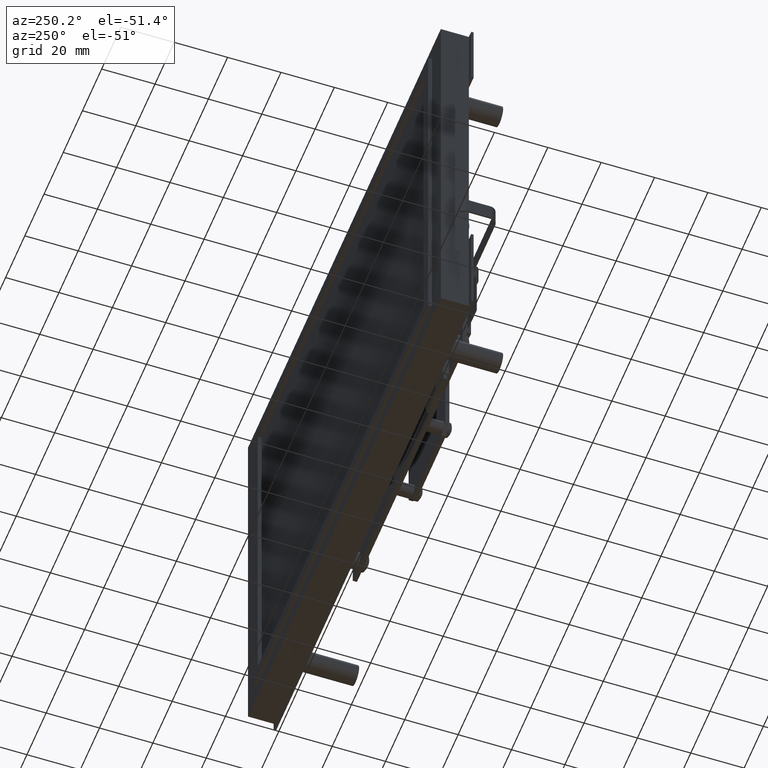
[diagram: clean part render]
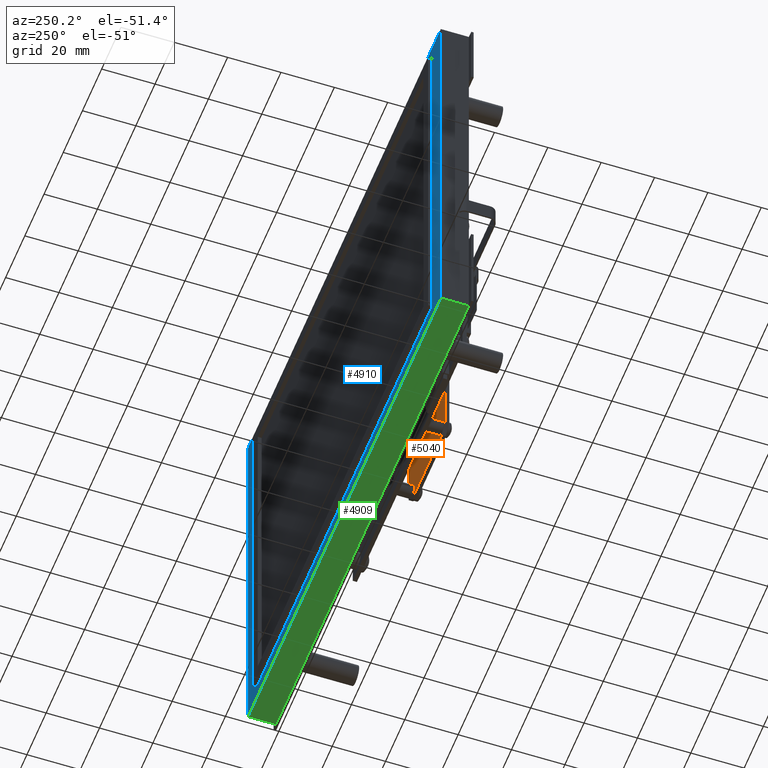
[diagram: same view with three faces highlighted in distinct colors, each labeled with its STEP entity id]
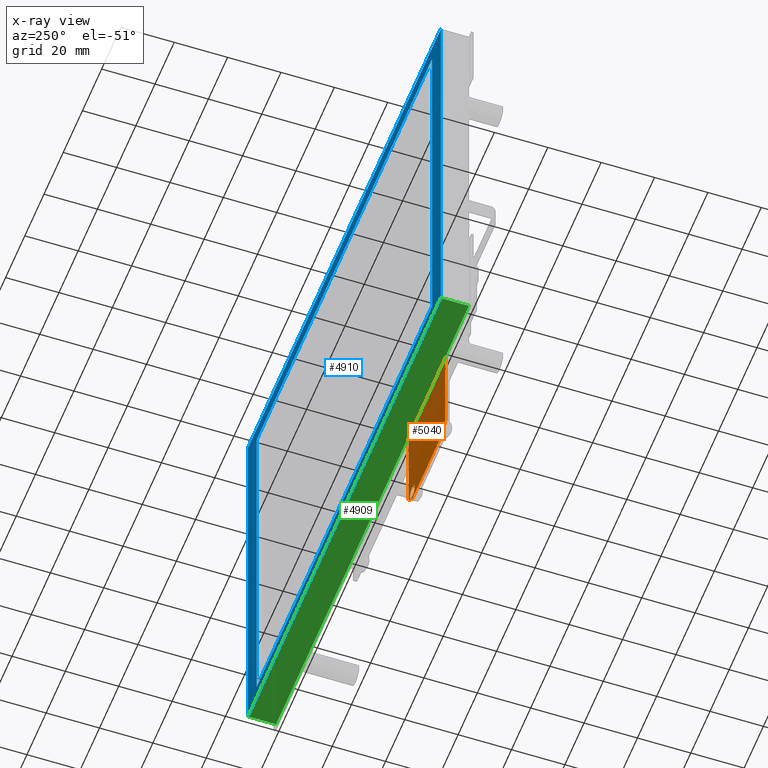
[diagram: x-ray of the same camera — body ghosted, the three highlighted faces saturated]
A machine part, auxiliary view with three faces highlighted in distinct colors.
The next image is the same camera in x-ray (body ghosted, the three faces saturated) — at least one of them is partly hidden behind the body in this view.
Their STEP definitions:

[orange] entity #5040 — the highlighted planar face has unit normal (0, -1, 0).
#392 = CARTESIAN_POINT ( 'NONE',  ( -0.6736452093562810300, 0.3120000000000000000, 1.250000000000000200 ) ) ;
#393 = DIRECTION ( 'NONE',  ( 0.7071067811865473500, 0.0000000000000000000, 0.7071067811865476800 ) ) ;
#394 = CARTESIAN_POINT ( 'NONE',  ( 0.6763547906437191700, 0.3120000000004746200, -1.150000000000000800 ) ) ;
#395 = DIRECTION ( 'NONE',  ( -0.0000000000000000000, -1.000000000000000000, 0.0000000000000000000 ) ) ;
#396 = DIRECTION ( 'NONE',  ( 0.0000000000000000000, 0.0000000000000000000, 1.000000000000000000 ) ) ;
#397 = CARTESIAN_POINT ( 'NONE',  ( -0.6736452093562813600, 0.3120000000000000000, -1.150000000000000800 ) ) ;
#398 = CARTESIAN_POINT ( 'NONE',  ( -0.6736452093562813600, 0.3120000000000000000, -1.150000000000000800 ) ) ;
#399 = CARTESIAN_POINT ( 'NONE',  ( -0.5236452093562811200, 0.3120000000004746200, -1.150000000000000800 ) ) ;
#400 = DIRECTION ( 'NONE',  ( 0.0000000000000000000, 1.000000000000000000, -0.0000000000000000000 ) ) ;
#401 = DIRECTION ( 'NONE',  ( 0.0000000000000000000, 0.0000000000000000000, 1.000000000000000000 ) ) ;
#402 = CARTESIAN_POINT ( 'NONE',  ( -0.5236452093562811200, 0.3120000000000000000, -1.300000000000000900 ) ) ;
#403 = DIRECTION ( 'NONE',  ( 1.138269997360109700E-016, 0.0000000000000000000, 1.000000000000000000 ) ) ;
#404 = CARTESIAN_POINT ( 'NONE',  ( 0.6763547906437196200, 0.3120000000000000000, -1.300000000000000900 ) ) ;
#405 = DIRECTION ( 'NONE',  ( -0.7071067811865473500, -0.0000000000000000000, 0.7071067811865476800 ) ) ;
#406 = CARTESIAN_POINT ( 'NONE',  ( 0.8263547906437195300, 0.3120000000000000000, -1.150000000000000800 ) ) ;
#407 = DIRECTION ( 'NONE',  ( -1.000000000000000000, 0.0000000000000000000, 0.0000000000000000000 ) ) ;
#408 = CARTESIAN_POINT ( 'NONE',  ( 0.6763547906437197300, 0.3120000000000000000, 1.400000000000000400 ) ) ;
#409 = DIRECTION ( 'NONE',  ( -0.7071067811865474600, 0.0000000000000000000, -0.7071067811865474600 ) ) ;
#410 = CARTESIAN_POINT ( 'NONE',  ( -0.5236452093562808900, 0.3120000000000000000, 1.400000000000000400 ) ) ;
#411 = DIRECTION ( 'NONE',  ( -1.138269997360109700E-016, 0.0000000000000000000, -1.000000000000000000 ) ) ;
#412 = DIRECTION ( 'NONE',  ( 0.7071067811865474600, 0.0000000000000000000, -0.7071067811865474600 ) ) ;
#413 = DIRECTION ( 'NONE',  ( 1.000000000000000000, 0.0000000000000000000, 0.0000000000000000000 ) ) ;
#416 = CARTESIAN_POINT ( 'NONE',  ( -0.5236452093562804500, 0.3120000000004746200, 1.250000000000000000 ) ) ;
#417 = DIRECTION ( 'NONE',  ( -0.0000000000000000000, -1.000000000000000000, 0.0000000000000000000 ) ) ;
#418 = DIRECTION ( 'NONE',  ( 0.0000000000000000000, 0.0000000000000000000, 1.000000000000000000 ) ) ;
#421 = CARTESIAN_POINT ( 'NONE',  ( 0.6763547906437199500, 0.3120000000004746200, 1.250000000000000000 ) ) ;
#422 = DIRECTION ( 'NONE',  ( -0.0000000000000000000, -1.000000000000000000, 0.0000000000000000000 ) ) ;
#423 = DIRECTION ( 'NONE',  ( 0.0000000000000000000, 0.0000000000000000000, 1.000000000000000000 ) ) ;
#649 = CARTESIAN_POINT ( 'NONE',  ( -0.5236452093562804500, 0.3120000000004746200, 1.250000000000000000 ) ) ;
#650 = DIRECTION ( 'NONE',  ( -0.0000000000000000000, -1.000000000000000000, 0.0000000000000000000 ) ) ;
#651 = DIRECTION ( 'NONE',  ( 0.0000000000000000000, 0.0000000000000000000, 1.000000000000000000 ) ) ;
#2506 = CIRCLE ( 'NONE', #11402, 0.1000000000000000200 ) ;
#2514 = CIRCLE ( 'NONE', #11404, 0.1000000000000000200 ) ;
#3683 = CARTESIAN_POINT ( 'NONE',  ( 0.6763547906437191700, 0.3120000000004746200, -1.150000000000000800 ) ) ;
#3684 = DIRECTION ( 'NONE',  ( -0.0000000000000000000, -1.000000000000000000, 0.0000000000000000000 ) ) ;
#3685 = DIRECTION ( 'NONE',  ( 0.0000000000000000000, 0.0000000000000000000, 1.000000000000000000 ) ) ;
#3692 = CARTESIAN_POINT ( 'NONE',  ( 0.6763547906437199500, 0.3120000000004746200, 1.250000000000000000 ) ) ;
#3693 = DIRECTION ( 'NONE',  ( -0.0000000000000000000, -1.000000000000000000, 0.0000000000000000000 ) ) ;
#3694 = DIRECTION ( 'NONE',  ( 0.0000000000000000000, 0.0000000000000000000, 1.000000000000000000 ) ) ;
#3802 = CARTESIAN_POINT ( 'NONE',  ( 0.6763547906437196200, 0.3120000000000000000, -1.300000000000000900 ) ) ;
#3873 = CARTESIAN_POINT ( 'NONE',  ( 0.6763547906437197300, 0.3120000000000000000, 1.400000000000000400 ) ) ;
#3875 = CARTESIAN_POINT ( 'NONE',  ( 0.8263547906437197500, 0.3120000000000000000, 1.250000000000000200 ) ) ;
#3876 = CARTESIAN_POINT ( 'NONE',  ( -0.5236452093562811200, 0.3120000000000000000, -1.300000000000000900 ) ) ;
#3877 = CARTESIAN_POINT ( 'NONE',  ( 0.8263547906437195300, 0.3120000000000000000, -1.150000000000000800 ) ) ;
#3884 = CARTESIAN_POINT ( 'NONE',  ( -0.5236452093562808900, 0.3120000000000000000, 1.400000000000000400 ) ) ;
#3896 = CARTESIAN_POINT ( 'NONE',  ( -0.6736452093562810300, 0.3120000000000000000, 1.250000000000000200 ) ) ;
#3975 = CARTESIAN_POINT ( 'NONE',  ( -0.6736452093562813600, 0.3120000000000000000, -1.150000000000000800 ) ) ;
#5040 = ADVANCED_FACE ( 'NONE', ( #8964, #8968, #8965, #8967, #8966 ), #10191, .F. ) ;
#5422 = VERTEX_POINT ( 'NONE', #20285 ) ;
#5447 = VERTEX_POINT ( 'NONE', #20289 ) ;
#5501 = VERTEX_POINT ( 'NONE', #20303 ) ;
#5546 = VERTEX_POINT ( 'NONE', #20315 ) ;
#5548 = VERTEX_POINT ( 'NONE', #20311 ) ;
#5572 = ORIENTED_EDGE ( 'NONE', *, *, #8122, .F. ) ;
#5587 = ORIENTED_EDGE ( 'NONE', *, *, #5968, .F. ) ;
#5637 = ORIENTED_EDGE ( 'NONE', *, *, #5970, .F. ) ;
#5640 = ORIENTED_EDGE ( 'NONE', *, *, #5963, .T. ) ;
#5665 = ORIENTED_EDGE ( 'NONE', *, *, #5966, .F. ) ;
#5674 = ORIENTED_EDGE ( 'NONE', *, *, #5823, .T. ) ;
#5681 = ORIENTED_EDGE ( 'NONE', *, *, #5962, .F. ) ;
#5694 = ORIENTED_EDGE ( 'NONE', *, *, #5965, .F. ) ;
#5698 = ORIENTED_EDGE ( 'NONE', *, *, #5964, .F. ) ;
#5702 = VERTEX_POINT ( 'NONE', #20327 ) ;
#5709 = ORIENTED_EDGE ( 'NONE', *, *, #5971, .F. ) ;
#5717 = ORIENTED_EDGE ( 'NONE', *, *, #6084, .F. ) ;
#5719 = ORIENTED_EDGE ( 'NONE', *, *, #8118, .F. ) ;
#5727 = VERTEX_POINT ( 'NONE', #20332 ) ;
#5729 = ORIENTED_EDGE ( 'NONE', *, *, #5972, .F. ) ;
#5751 = VERTEX_POINT ( 'NONE', #20337 ) ;
#5760 = ORIENTED_EDGE ( 'NONE', *, *, #5973, .F. ) ;
#5770 = ORIENTED_EDGE ( 'NONE', *, *, #5969, .F. ) ;
#5771 = ORIENTED_EDGE ( 'NONE', *, *, #5967, .F. ) ;
#5823 = EDGE_CURVE ( 'NONE', #5548, #5447, #9429, .T. ) ;
#5962 = EDGE_CURVE ( 'NONE', #5727, #5422, #9580, .T. ) ;
#5963 = EDGE_CURVE ( 'NONE', #5447, #5548, #9582, .T. ) ;
#5964 = EDGE_CURVE ( 'NONE', #13134, #13122, #9584, .T. ) ;
#5965 = EDGE_CURVE ( 'NONE', #13213, #13134, #9585, .T. ) ;
#5966 = EDGE_CURVE ( 'NONE', #13114, #13213, #9586, .T. ) ;
#5967 = EDGE_CURVE ( 'NONE', #13040, #13114, #9588, .T. ) ;
#5968 = EDGE_CURVE ( 'NONE', #13115, #13040, #9590, .T. ) ;
#5969 = EDGE_CURVE ( 'NONE', #13113, #13115, #9592, .T. ) ;
#5970 = EDGE_CURVE ( 'NONE', #13111, #13113, #9594, .T. ) ;
#5971 = EDGE_CURVE ( 'NONE', #13122, #13111, #9596, .T. ) ;
#5972 = EDGE_CURVE ( 'NONE', #5751, #5501, #9598, .T. ) ;
#5973 = EDGE_CURVE ( 'NONE', #5702, #5546, #9602, .T. ) ;
#6084 = EDGE_CURVE ( 'NONE', #5501, #5751, #9815, .T. ) ;
#8118 = EDGE_CURVE ( 'NONE', #5422, #5727, #2506, .T. ) ;
#8122 = EDGE_CURVE ( 'NONE', #5546, #5702, #2514, .T. ) ;
#8320 = AXIS2_PLACEMENT_3D ( 'NONE', #10187, #10189, #10194 ) ;
#8964 = FACE_BOUND ( 'NONE', #13443, .T. ) ;
#8965 = FACE_OUTER_BOUND ( 'NONE', #13563, .T. ) ;
#8966 = FACE_BOUND ( 'NONE', #13536, .T. ) ;
#8967 = FACE_BOUND ( 'NONE', #13333, .T. ) ;
#8968 = FACE_BOUND ( 'NONE', #13427, .T. ) ;
#9429 = CIRCLE ( 'NONE', #11336, 0.1000000000000000200 ) ;
#9580 = CIRCLE ( 'NONE', #11353, 0.1000000000000000200 ) ;
#9582 = CIRCLE ( 'NONE', #11354, 0.1000000000000000200 ) ;
#9584 = LINE ( 'NONE', #392, #9587 ) ;
#9585 = LINE ( 'NONE', #398, #9589 ) ;
#9586 = LINE ( 'NONE', #397, #9591 ) ;
#9587 = VECTOR ( 'NONE', #393, 39.37007874015748900 ) ;
#9588 = LINE ( 'NONE', #402, #9593 ) ;
#9589 = VECTOR ( 'NONE', #403, 39.37007874015748100 ) ;
#9590 = LINE ( 'NONE', #404, #9595 ) ;
#9591 = VECTOR ( 'NONE', #405, 39.37007874015748900 ) ;
#9592 = LINE ( 'NONE', #406, #9597 ) ;
#9593 = VECTOR ( 'NONE', #407, 39.37007874015748100 ) ;
#9594 = LINE ( 'NONE', #408, #9599 ) ;
#9595 = VECTOR ( 'NONE', #409, 39.37007874015748900 ) ;
#9596 = LINE ( 'NONE', #410, #9601 ) ;
#9597 = VECTOR ( 'NONE', #411, 39.37007874015748100 ) ;
#9598 = CIRCLE ( 'NONE', #11355, 0.1000000000000000200 ) ;
#9599 = VECTOR ( 'NONE', #412, 39.37007874015748900 ) ;
#9601 = VECTOR ( 'NONE', #413, 39.37007874015748100 ) ;
#9602 = CIRCLE ( 'NONE', #11356, 0.1000000000000000200 ) ;
#9815 = CIRCLE ( 'NONE', #11364, 0.1000000000000000200 ) ;
#10187 = CARTESIAN_POINT ( 'NONE',  ( 0.0000000000000000000, 0.3120000000000000000, 0.0000000000000000000 ) ) ;
#10189 = DIRECTION ( 'NONE',  ( 0.0000000000000000000, 1.000000000000000000, 0.0000000000000000000 ) ) ;
#10191 = PLANE ( 'NONE',  #8320 ) ;
#10194 = DIRECTION ( 'NONE',  ( 0.0000000000000000000, -0.0000000000000000000, 1.000000000000000000 ) ) ;
#11336 = AXIS2_PLACEMENT_3D ( 'NONE', #20414, #20415, #20416 ) ;
#11353 = AXIS2_PLACEMENT_3D ( 'NONE', #394, #395, #396 ) ;
#11354 = AXIS2_PLACEMENT_3D ( 'NONE', #399, #400, #401 ) ;
#11355 = AXIS2_PLACEMENT_3D ( 'NONE', #416, #417, #418 ) ;
#11356 = AXIS2_PLACEMENT_3D ( 'NONE', #421, #422, #423 ) ;
#11364 = AXIS2_PLACEMENT_3D ( 'NONE', #649, #650, #651 ) ;
#11402 = AXIS2_PLACEMENT_3D ( 'NONE', #3683, #3684, #3685 ) ;
#11404 = AXIS2_PLACEMENT_3D ( 'NONE', #3692, #3693, #3694 ) ;
#13040 = VERTEX_POINT ( 'NONE', #3802 ) ;
#13111 = VERTEX_POINT ( 'NONE', #3873 ) ;
#13113 = VERTEX_POINT ( 'NONE', #3875 ) ;
#13114 = VERTEX_POINT ( 'NONE', #3876 ) ;
#13115 = VERTEX_POINT ( 'NONE', #3877 ) ;
#13122 = VERTEX_POINT ( 'NONE', #3884 ) ;
#13134 = VERTEX_POINT ( 'NONE', #3896 ) ;
#13213 = VERTEX_POINT ( 'NONE', #3975 ) ;
#13333 = EDGE_LOOP ( 'NONE', ( #5717, #5729 ) ) ;
#13427 = EDGE_LOOP ( 'NONE', ( #5640, #5674 ) ) ;
#13443 = EDGE_LOOP ( 'NONE', ( #5719, #5681 ) ) ;
#13536 = EDGE_LOOP ( 'NONE', ( #5572, #5760 ) ) ;
#13563 = EDGE_LOOP ( 'NONE', ( #5698, #5694, #5665, #5771, #5587, #5770, #5637, #5709 ) ) ;
#20285 = CARTESIAN_POINT ( 'NONE',  ( 0.6763547906437191700, 0.3120000000004746200, -1.250000000000000900 ) ) ;
#20289 = CARTESIAN_POINT ( 'NONE',  ( -0.5236452093562811200, 0.3120000000004746200, -1.250000000000000900 ) ) ;
#20303 = CARTESIAN_POINT ( 'NONE',  ( -0.5236452093562804500, 0.3120000000004746200, 1.150000000000000100 ) ) ;
#20311 = CARTESIAN_POINT ( 'NONE',  ( -0.5236452093562811200, 0.3120000000004746200, -1.050000000000000700 ) ) ;
#20315 = CARTESIAN_POINT ( 'NONE',  ( 0.6763547906437199500, 0.3120000000004746200, 1.150000000000000100 ) ) ;
#20327 = CARTESIAN_POINT ( 'NONE',  ( 0.6763547906437199500, 0.3120000000004746200, 1.350000000000000100 ) ) ;
#20332 = CARTESIAN_POINT ( 'NONE',  ( 0.6763547906437191700, 0.3120000000004746200, -1.050000000000000700 ) ) ;
#20337 = CARTESIAN_POINT ( 'NONE',  ( -0.5236452093562804500, 0.3120000000004746200, 1.350000000000000100 ) ) ;
#20414 = CARTESIAN_POINT ( 'NONE',  ( -0.5236452093562811200, 0.3120000000004746200, -1.150000000000000800 ) ) ;
#20415 = DIRECTION ( 'NONE',  ( 0.0000000000000000000, 1.000000000000000000, -0.0000000000000000000 ) ) ;
#20416 = DIRECTION ( 'NONE',  ( 0.0000000000000000000, 0.0000000000000000000, 1.000000000000000000 ) ) ;

[blue] entity #4910 — the highlighted planar face has unit normal (0, -1, 0).
#676 = CARTESIAN_POINT ( 'NONE',  ( -3.950999999999999600, 0.0000000000000000000, -2.990000000000000700 ) ) ;
#695 = CARTESIAN_POINT ( 'NONE',  ( -3.951000000000000100, 0.0000000000000000000, 2.995000000000000100 ) ) ;
#697 = CARTESIAN_POINT ( 'NONE',  ( 3.592500000000000700, 0.0000000000000000000, -2.752500000000000800 ) ) ;
#698 = DIRECTION ( 'NONE',  ( -1.000000000000000000, 0.0000000000000000000, 0.0000000000000000000 ) ) ;
#699 = CARTESIAN_POINT ( 'NONE',  ( 3.951000000000000100, 0.0000000000000000000, 2.995000000000000100 ) ) ;
#700 = CARTESIAN_POINT ( 'NONE',  ( -3.951000000000000100, 0.0000000000000000000, 2.995000000000000100 ) ) ;
#701 = DIRECTION ( 'NONE',  ( 9.128982434968297100E-017, -0.0000000000000000000, 1.000000000000000000 ) ) ;
#702 = DIRECTION ( 'NONE',  ( 1.000000000000000000, 0.0000000000000000000, 0.0000000000000000000 ) ) ;
#704 = DIRECTION ( 'NONE',  ( -1.000000000000000000, -0.0000000000000000000, -0.0000000000000000000 ) ) ;
#706 = DIRECTION ( 'NONE',  ( 9.128982434968297100E-017, 0.0000000000000000000, -1.000000000000000000 ) ) ;
#2546 = LINE ( 'NONE', #4019, #2553 ) ;
#2553 = VECTOR ( 'NONE', #4026, 39.37007874015748100 ) ;
#2564 = LINE ( 'NONE', #4038, #2567 ) ;
#2567 = VECTOR ( 'NONE', #4039, 39.37007874015748100 ) ;
#2582 = LINE ( 'NONE', #4056, #2585 ) ;
#2585 = VECTOR ( 'NONE', #4057, 39.37007874015748100 ) ;
#4019 = CARTESIAN_POINT ( 'NONE',  ( 3.592500000000000700, 0.0000000000000000000, 2.752499999999999100 ) ) ;
#4026 = DIRECTION ( 'NONE',  ( 0.0000000000000000000, 0.0000000000000000000, -1.000000000000000000 ) ) ;
#4038 = CARTESIAN_POINT ( 'NONE',  ( -3.592499999999999400, 0.0000000000000000000, -2.752500000000000800 ) ) ;
#4039 = DIRECTION ( 'NONE',  ( 0.0000000000000000000, 0.0000000000000000000, 1.000000000000000000 ) ) ;
#4056 = CARTESIAN_POINT ( 'NONE',  ( -3.592499999999999400, 0.0000000000000000000, 2.752499999999999100 ) ) ;
#4057 = DIRECTION ( 'NONE',  ( 1.000000000000000000, 0.0000000000000000000, 0.0000000000000000000 ) ) ;
#4910 = ADVANCED_FACE ( 'NONE', ( #7978, #7984 ), #14770, .F. ) ;
#5461 = VERTEX_POINT ( 'NONE', #20290 ) ;
#5489 = VERTEX_POINT ( 'NONE', #20299 ) ;
#5493 = VERTEX_POINT ( 'NONE', #20296 ) ;
#5529 = VERTEX_POINT ( 'NONE', #20305 ) ;
#5664 = VERTEX_POINT ( 'NONE', #20319 ) ;
#5735 = VERTEX_POINT ( 'NONE', #20323 ) ;
#5736 = VERTEX_POINT ( 'NONE', #20339 ) ;
#5788 = VERTEX_POINT ( 'NONE', #20343 ) ;
#6104 = EDGE_CURVE ( 'NONE', #5461, #5493, #9847, .T. ) ;
#6105 = EDGE_CURVE ( 'NONE', #5735, #5736, #9849, .T. ) ;
#6106 = EDGE_CURVE ( 'NONE', #5788, #5735, #9845, .T. ) ;
#6107 = EDGE_CURVE ( 'NONE', #5736, #5529, #9851, .T. ) ;
#6108 = EDGE_CURVE ( 'NONE', #5529, #5788, #9853, .T. ) ;
#7978 = FACE_OUTER_BOUND ( 'NONE', #13429, .T. ) ;
#7984 = FACE_BOUND ( 'NONE', #13299, .T. ) ;
#8201 = AXIS2_PLACEMENT_3D ( 'NONE', #14761, #14775, #14776 ) ;
#9845 = LINE ( 'NONE', #676, #9854 ) ;
#9847 = LINE ( 'NONE', #697, #9850 ) ;
#9849 = LINE ( 'NONE', #699, #9852 ) ;
#9850 = VECTOR ( 'NONE', #698, 39.37007874015748100 ) ;
#9851 = LINE ( 'NONE', #695, #9856 ) ;
#9852 = VECTOR ( 'NONE', #701, 39.37007874015748100 ) ;
#9853 = LINE ( 'NONE', #700, #9858 ) ;
#9854 = VECTOR ( 'NONE', #702, 39.37007874015748100 ) ;
#9856 = VECTOR ( 'NONE', #704, 39.37007874015748100 ) ;
#9858 = VECTOR ( 'NONE', #706, 39.37007874015748100 ) ;
#13254 = ORIENTED_EDGE ( 'NONE', *, *, #6104, .F. ) ;
#13255 = ORIENTED_EDGE ( 'NONE', *, *, #6106, .F. ) ;
#13256 = ORIENTED_EDGE ( 'NONE', *, *, #6108, .F. ) ;
#13257 = ORIENTED_EDGE ( 'NONE', *, *, #6105, .F. ) ;
#13258 = ORIENTED_EDGE ( 'NONE', *, *, #13678, .F. ) ;
#13259 = ORIENTED_EDGE ( 'NONE', *, *, #13669, .F. ) ;
#13271 = ORIENTED_EDGE ( 'NONE', *, *, #13662, .F. ) ;
#13277 = ORIENTED_EDGE ( 'NONE', *, *, #6107, .F. ) ;
#13299 = EDGE_LOOP ( 'NONE', ( #13254, #13271, #13258, #13259 ) ) ;
#13429 = EDGE_LOOP ( 'NONE', ( #13256, #13277, #13257, #13255 ) ) ;
#13662 = EDGE_CURVE ( 'NONE', #5489, #5461, #2546, .T. ) ;
#13669 = EDGE_CURVE ( 'NONE', #5493, #5664, #2564, .T. ) ;
#13678 = EDGE_CURVE ( 'NONE', #5664, #5489, #2582, .T. ) ;
#14761 = CARTESIAN_POINT ( 'NONE',  ( 0.0000000000000000000, 0.0000000000000000000, 0.0000000000000000000 ) ) ;
#14770 = PLANE ( 'NONE',  #8201 ) ;
#14775 = DIRECTION ( 'NONE',  ( 0.0000000000000000000, -1.000000000000000000, 0.0000000000000000000 ) ) ;
#14776 = DIRECTION ( 'NONE',  ( 0.0000000000000000000, -0.0000000000000000000, -1.000000000000000000 ) ) ;
#20290 = CARTESIAN_POINT ( 'NONE',  ( 3.592500000000000700, 0.0000000000000000000, -2.752500000000000800 ) ) ;
#20296 = CARTESIAN_POINT ( 'NONE',  ( -3.592499999999999400, 0.0000000000000000000, -2.752500000000000800 ) ) ;
#20299 = CARTESIAN_POINT ( 'NONE',  ( 3.592500000000000700, 0.0000000000000000000, 2.752499999999999100 ) ) ;
#20305 = CARTESIAN_POINT ( 'NONE',  ( -3.951000000000000100, 0.0000000000000000000, 2.995000000000000100 ) ) ;
#20319 = CARTESIAN_POINT ( 'NONE',  ( -3.592499999999999400, 0.0000000000000000000, 2.752499999999999100 ) ) ;
#20323 = CARTESIAN_POINT ( 'NONE',  ( 3.950999999999999600, 0.0000000000000000000, -2.990000000000000700 ) ) ;
#20339 = CARTESIAN_POINT ( 'NONE',  ( 3.951000000000000100, 0.0000000000000000000, 2.995000000000000100 ) ) ;
#20343 = CARTESIAN_POINT ( 'NONE',  ( -3.950999999999999600, 0.0000000000000000000, -2.990000000000000700 ) ) ;

[green] entity #4909 — the highlighted planar face has unit normal (0, 0, 1).
#676 = CARTESIAN_POINT ( 'NONE',  ( -3.950999999999999600, 0.0000000000000000000, -2.990000000000000700 ) ) ;
#702 = DIRECTION ( 'NONE',  ( 1.000000000000000000, 0.0000000000000000000, 0.0000000000000000000 ) ) ;
#2550 = LINE ( 'NONE', #4022, #2561 ) ;
#2552 = LINE ( 'NONE', #4027, #2555 ) ;
#2555 = VECTOR ( 'NONE', #4028, 39.37007874015748100 ) ;
#2561 = VECTOR ( 'NONE', #4033, 39.37007874015748100 ) ;
#2572 = LINE ( 'NONE', #4046, #2575 ) ;
#2575 = VECTOR ( 'NONE', #4047, 39.37007874015748100 ) ;
#4022 = CARTESIAN_POINT ( 'NONE',  ( 3.950999999999999600, -0.4130000000000000300, -2.990000000000000700 ) ) ;
#4027 = CARTESIAN_POINT ( 'NONE',  ( -3.950999999999999600, -0.4130000000000000300, -2.990000000000000700 ) ) ;
#4028 = DIRECTION ( 'NONE',  ( -0.0000000000000000000, 1.000000000000000000, -0.0000000000000000000 ) ) ;
#4033 = DIRECTION ( 'NONE',  ( -0.0000000000000000000, 1.000000000000000000, -0.0000000000000000000 ) ) ;
#4046 = CARTESIAN_POINT ( 'NONE',  ( -3.950999999999999600, -0.4130000000000000300, -2.990000000000000700 ) ) ;
#4047 = DIRECTION ( 'NONE',  ( 1.000000000000000000, 0.0000000000000000000, 0.0000000000000000000 ) ) ;
#4909 = ADVANCED_FACE ( 'NONE', ( #7980 ), #14769, .F. ) ;
#5696 = VERTEX_POINT ( 'NONE', #20321 ) ;
#5735 = VERTEX_POINT ( 'NONE', #20323 ) ;
#5753 = VERTEX_POINT ( 'NONE', #20342 ) ;
#5788 = VERTEX_POINT ( 'NONE', #20343 ) ;
#6106 = EDGE_CURVE ( 'NONE', #5788, #5735, #9845, .T. ) ;
#7980 = FACE_OUTER_BOUND ( 'NONE', #13413, .T. ) ;
#8200 = AXIS2_PLACEMENT_3D ( 'NONE', #14766, #14771, #14772 ) ;
#9845 = LINE ( 'NONE', #676, #9854 ) ;
#9854 = VECTOR ( 'NONE', #702, 39.37007874015748100 ) ;
#13253 = ORIENTED_EDGE ( 'NONE', *, *, #13663, .T. ) ;
#13269 = ORIENTED_EDGE ( 'NONE', *, *, #13673, .F. ) ;
#13275 = ORIENTED_EDGE ( 'NONE', *, *, #6106, .T. ) ;
#13276 = ORIENTED_EDGE ( 'NONE', *, *, #13666, .F. ) ;
#13413 = EDGE_LOOP ( 'NONE', ( #13275, #13276, #13269, #13253 ) ) ;
#13663 = EDGE_CURVE ( 'NONE', #5753, #5788, #2552, .T. ) ;
#13666 = EDGE_CURVE ( 'NONE', #5696, #5735, #2550, .T. ) ;
#13673 = EDGE_CURVE ( 'NONE', #5753, #5696, #2572, .T. ) ;
#14766 = CARTESIAN_POINT ( 'NONE',  ( -3.950999999999999600, -0.4130000000000000300, -2.990000000000000700 ) ) ;
#14769 = PLANE ( 'NONE',  #8200 ) ;
#14771 = DIRECTION ( 'NONE',  ( -0.0000000000000000000, 0.0000000000000000000, 1.000000000000000000 ) ) ;
#14772 = DIRECTION ( 'NONE',  ( 1.000000000000000000, 0.0000000000000000000, 0.0000000000000000000 ) ) ;
#20321 = CARTESIAN_POINT ( 'NONE',  ( 3.950999999999999600, -0.4130000000000000300, -2.990000000000000700 ) ) ;
#20323 = CARTESIAN_POINT ( 'NONE',  ( 3.950999999999999600, 0.0000000000000000000, -2.990000000000000700 ) ) ;
#20342 = CARTESIAN_POINT ( 'NONE',  ( -3.950999999999999600, -0.4130000000000000300, -2.990000000000000700 ) ) ;
#20343 = CARTESIAN_POINT ( 'NONE',  ( -3.950999999999999600, 0.0000000000000000000, -2.990000000000000700 ) ) ;